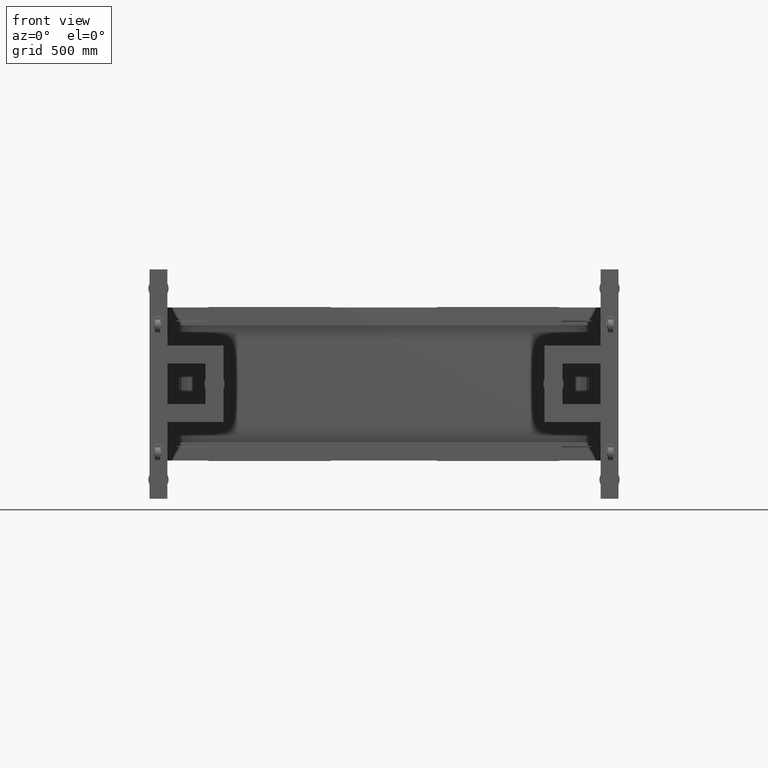
[diagram: clean part render]
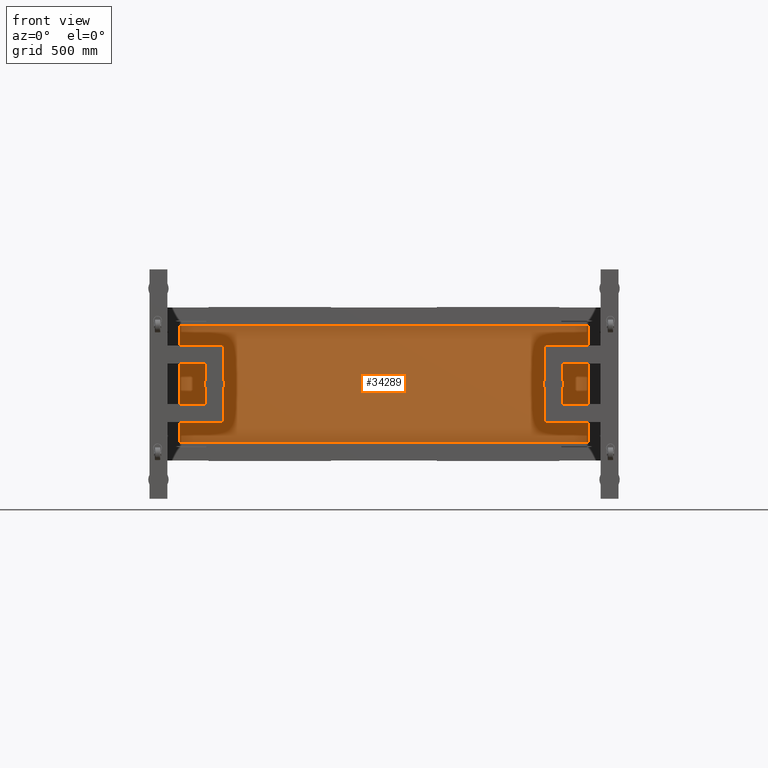
[diagram: same view with one face highlighted and labeled with its STEP entity id]
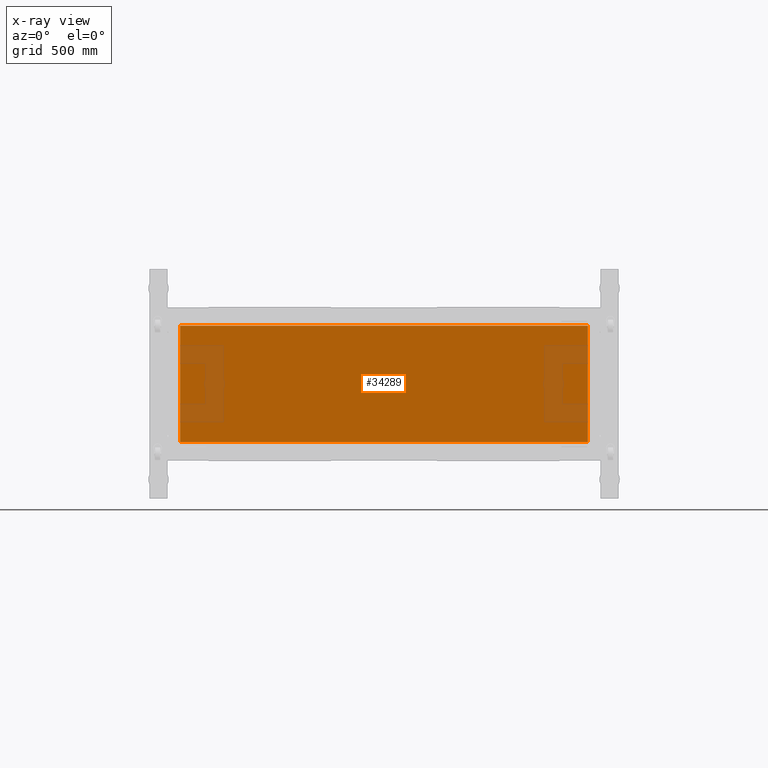
[diagram: x-ray of the same camera — body ghosted, the highlighted face saturated]
A machine part, front view. The second image highlights one B-rep face of the part: STEP entity #34289.
The next image is the same camera in x-ray: the body ghosted, the highlighted face saturated — about 10% of this face is hidden behind the body in this view.
In plain terms, the highlighted planar face has unit normal (-0, 1, -0).
Its self-contained STEP definition (entity closure, byte-faithful):
#179 = ORIENTED_EDGE ( 'NONE', *, *, #69022, .T. ) ;
#5457 = LINE ( 'NONE', #60106, #65423 ) ;
#7343 = EDGE_CURVE ( 'NONE', #43229, #43933, #5457, .T. ) ;
#9447 = DIRECTION ( 'NONE',  ( 1.000000000000000000, 2.768038506440323819E-16, 0.000000000000000000 ) ) ;
#17013 = ORIENTED_EDGE ( 'NONE', *, *, #32887, .T. ) ;
#20869 = CARTESIAN_POINT ( 'NONE',  ( 381.8275125628149453, 555.4410804020126307, -228.4899999999998954 ) ) ;
#21448 = LINE ( 'NONE', #22249, #71287 ) ;
#22249 = CARTESIAN_POINT ( 'NONE',  ( 530.3175125628156366, 555.4410804020130854, 228.4900000000001228 ) ) ;
#25844 = FACE_OUTER_BOUND ( 'NONE', #60631, .T. ) ;
#27435 = LINE ( 'NONE', #70509, #34332 ) ;
#31030 = PLANE ( 'NONE',  #74192 ) ;
#32887 = EDGE_CURVE ( 'NONE', #63410, #33349, #42899, .T. ) ;
#33233 = VECTOR ( 'NONE', #34263, 1000.000000000000000 ) ;
#33349 = VERTEX_POINT ( 'NONE', #73136 ) ;
#34263 = DIRECTION ( 'NONE',  ( -1.168946273182390932E-31, 1.000000000000000472E-15, 1.000000000000000000 ) ) ;
#34289 = ADVANCED_FACE ( 'NONE', ( #25844 ), #31030, .F. ) ;
#34332 = VECTOR ( 'NONE', #9447, 1000.000000000000000 ) ;
#39385 = DIRECTION ( 'NONE',  ( -1.000000000000000000, -2.768038506440323819E-16, 0.000000000000000000 ) ) ;
#42899 = LINE ( 'NONE', #72815, #33233 ) ;
#43229 = VERTEX_POINT ( 'NONE', #77453 ) ;
#43933 = VERTEX_POINT ( 'NONE', #62346 ) ;
#45259 = ORIENTED_EDGE ( 'NONE', *, *, #68971, .T. ) ;
#48551 = DIRECTION ( 'NONE',  ( -1.599092233257933979E-31, 1.000000000000000472E-15, 1.000000000000000000 ) ) ;
#49398 = DIRECTION ( 'NONE',  ( -2.768038506440323819E-16, 1.000000000000000000, -1.000000000000000472E-15 ) ) ;
#60106 = CARTESIAN_POINT ( 'NONE',  ( -1218.172487437185055, 555.4410804020126307, 1.110223024625154773E-13 ) ) ;
#60631 = EDGE_LOOP ( 'NONE', ( #45259, #67465, #179, #17013 ) ) ;
#62346 = CARTESIAN_POINT ( 'NONE',  ( -1218.172487437185055, 555.4410804020128580, 228.4900000000001228 ) ) ;
#63410 = VERTEX_POINT ( 'NONE', #20869 ) ;
#65423 = VECTOR ( 'NONE', #48551, 1000.000000000000000 ) ;
#67465 = ORIENTED_EDGE ( 'NONE', *, *, #7343, .F. ) ;
#68971 = EDGE_CURVE ( 'NONE', #33349, #43933, #21448, .T. ) ;
#69022 = EDGE_CURVE ( 'NONE', #43229, #63410, #27435, .T. ) ;
#70509 = CARTESIAN_POINT ( 'NONE',  ( -1866.662487437184382, 555.4410804020120622, -228.4899999999998954 ) ) ;
#71287 = VECTOR ( 'NONE', #39385, 1000.000000000000000 ) ;
#72815 = CARTESIAN_POINT ( 'NONE',  ( 381.8275125628147180, 555.4410804020128580, 1.110223024625154773E-13 ) ) ;
#73136 = CARTESIAN_POINT ( 'NONE',  ( 381.8275125628147180, 555.4410804020130854, 228.4900000000001228 ) ) ;
#73716 = CARTESIAN_POINT ( 'NONE',  ( -668.1724874371843725, 555.4410804020125170, 1.110223024625156540E-13 ) ) ;
#74192 = AXIS2_PLACEMENT_3D ( 'NONE', #73716, #49398, #74504 ) ;
#74504 = DIRECTION ( 'NONE',  ( -2.768038506440324911E-31, 1.000000000000000472E-15, 1.000000000000000000 ) ) ;
#77453 = CARTESIAN_POINT ( 'NONE',  ( -1218.172487437185282, 555.4410804020124033, -228.4899999999998954 ) ) ;